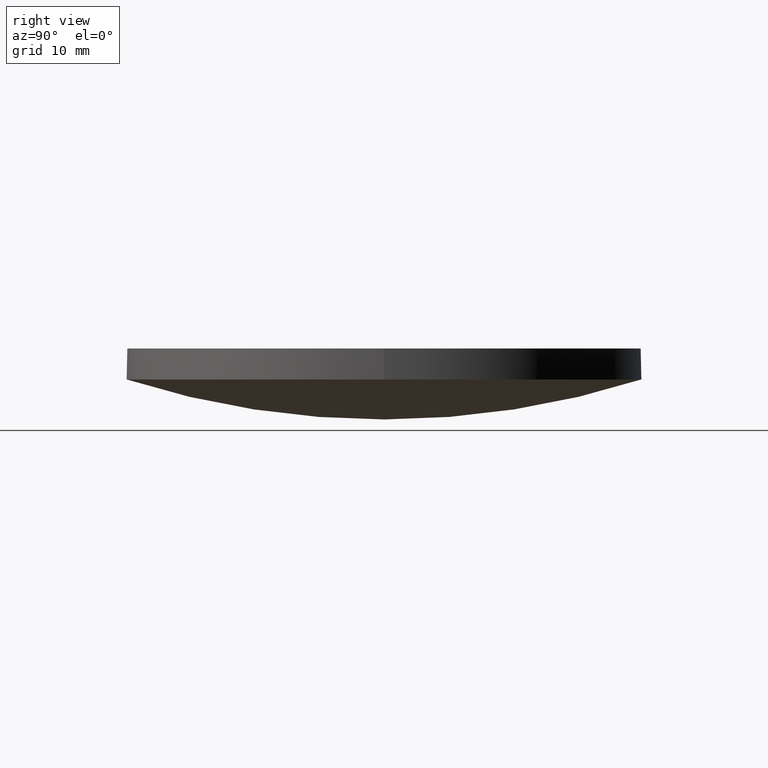
[diagram: clean part render]
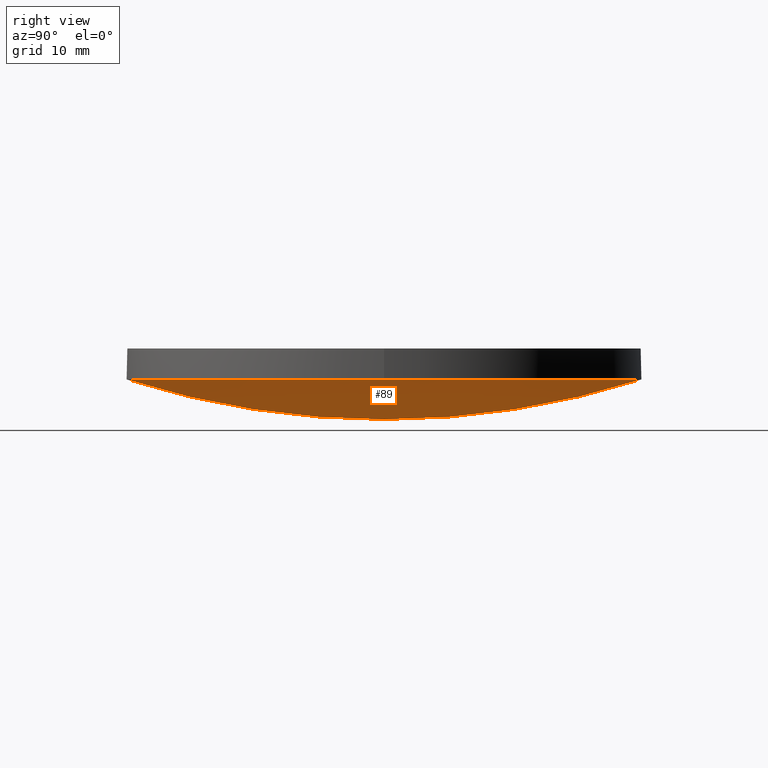
[diagram: same view with one face highlighted and labeled with its STEP entity id]
A machine part, right view. The second image highlights one B-rep face of the part: STEP entity #89.
In plain terms, the highlighted face is a freeform B-spline surface patch.
Its self-contained STEP definition (entity closure, byte-faithful):
#15 = CARTESIAN_POINT ( 'NONE',  ( 17.56126240751326900, -8.850211354717091100, -0.02758173750897841700 ) ) ;
#17 = DIRECTION ( 'NONE',  ( -0.0000000000000000000, -0.0000000000000000000, -1.000000000000000000 ) ) ;
#18 = EDGE_LOOP ( 'NONE', ( #212, #42, #205 ) ) ;
#26 =( BOUNDED_SURFACE ( )  B_SPLINE_SURFACE ( 3, 3, ( 
 ( #136, #178, #230, #158 ),
 ( #193, #210, #15, #183 ),
 ( #65, #195, #138, #118 ),
 ( #180, #234, #216, #161 ) ),
 .UNSPECIFIED., .F., .F., .T. ) 
 B_SPLINE_SURFACE_WITH_KNOTS ( ( 4, 4 ),
 ( 4, 4 ),
 ( 0.0000000000000000000, 1.000000000000000000 ),
 ( 0.0000000000000000000, 1.000000000000000000 ),
 .UNSPECIFIED. ) 
 GEOMETRIC_REPRESENTATION_ITEM ( )  RATIONAL_B_SPLINE_SURFACE ( (
 ( 1.000000000000000000, 0.9919887251175699700, 0.9919887251175699700, 1.000000000000000000),
 ( 0.9677694585664475800, 0.9600163914110513300, 0.9600163914110513300, 0.9677694585664475800),
 ( 0.9677694585664475800, 0.9600163914110513300, 0.9600163914110513300, 0.9677694585664475800),
 ( 1.000000000000000000, 0.9919887251175699700, 0.9919887251175699700, 1.000000000000000000) ) ) 
 REPRESENTATION_ITEM ( '' )  SURFACE ( )  );
#40 = DIRECTION ( 'NONE',  ( -0.0000000000000000000, -0.0000000000000000000, -1.000000000000000000 ) ) ;
#41 = EDGE_CURVE ( 'NONE', #93, #128, #219, .T. ) ;
#42 = ORIENTED_EDGE ( 'NONE', *, *, #227, .T. ) ;
#52 = DIRECTION ( 'NONE',  ( 1.000000000000000000, 0.0000000000000000000, 0.0000000000000000000 ) ) ;
#64 = DIRECTION ( 'NONE',  ( 1.000000000000000000, -1.776356839400250500E-015, 0.0000000000000000000 ) ) ;
#65 = CARTESIAN_POINT ( 'NONE',  ( 2.245628495783497100E-014, 8.850211354717103500, -1.392937526107893800 ) ) ;
#67 = CARTESIAN_POINT ( 'NONE',  ( 3.275035724031239300E-014, -25.39999999999999100, 3.949545170682996700 ) ) ;
#78 = AXIS2_PLACEMENT_3D ( 'NONE', #108, #209, #171 ) ;
#84 = FACE_OUTER_BOUND ( 'NONE', #18, .T. ) ;
#89 = ADVANCED_FACE ( 'NONE', ( #84 ), #26, .T. ) ;
#93 = VERTEX_POINT ( 'NONE', #214 ) ;
#108 = CARTESIAN_POINT ( 'NONE',  ( 0.0000000000000000000, 0.0000000000000000000, 83.65000000000000600 ) ) ;
#115 = VERTEX_POINT ( 'NONE', #67 ) ;
#118 = CARTESIAN_POINT ( 'NONE',  ( 25.97290625815989200, 8.850211354717112400, 2.670315118084529700 ) ) ;
#128 = VERTEX_POINT ( 'NONE', #194 ) ;
#136 = CARTESIAN_POINT ( 'NONE',  ( 3.282440350888094400E-014, -25.69489275285958700, 4.044127186374965700 ) ) ;
#138 = CARTESIAN_POINT ( 'NONE',  ( 17.56126240751326200, 8.850211354717108800, -0.02758173750896670100 ) ) ;
#156 = CARTESIAN_POINT ( 'NONE',  ( 9.992007221626412800E-016, 4.884981308350691100E-015, 3.949545170682999400 ) ) ;
#158 = CARTESIAN_POINT ( 'NONE',  ( 24.31237598715987100, -25.69489275285957700, 7.847603202286421700 ) ) ;
#161 = CARTESIAN_POINT ( 'NONE',  ( 24.31237598715984700, 25.69489275285960500, 7.847603202286434200 ) ) ;
#163 = CARTESIAN_POINT ( 'NONE',  ( 9.992007221626412800E-016, 4.884981308350691100E-015, 3.949545170682999400 ) ) ;
#171 = DIRECTION ( 'NONE',  ( 3.473828569973949900E-016, -1.000000000000000000, 0.0000000000000000000 ) ) ;
#178 = CARTESIAN_POINT ( 'NONE',  ( 8.268941173388400400, -25.69489275285958000, 4.044127186374967500 ) ) ;
#180 = CARTESIAN_POINT ( 'NONE',  ( 1.497247299942089200E-014, 25.69489275285959500, 4.044127186374979000 ) ) ;
#183 = CARTESIAN_POINT ( 'NONE',  ( 25.97290625815989900, -8.850211354717089300, 2.670315118084519000 ) ) ;
#190 = CIRCLE ( 'NONE', #78, 83.65000000000000600 ) ;
#193 = CARTESIAN_POINT ( 'NONE',  ( 2.860510836869978600E-014, -8.850211354717096400, -1.392937526107905800 ) ) ;
#194 = CARTESIAN_POINT ( 'NONE',  ( 25.39999999999999900, 4.884981308350691100E-015, 3.949545170682999400 ) ) ;
#195 = CARTESIAN_POINT ( 'NONE',  ( 8.833708151933864300, 8.850211354717107100, -1.392937526107891100 ) ) ;
#203 = CIRCLE ( 'NONE', #226, 25.39999999999999900 ) ;
#205 = ORIENTED_EDGE ( 'NONE', *, *, #41, .T. ) ;
#209 = DIRECTION ( 'NONE',  ( 1.000000000000000000, 3.473828569973949900E-016, 3.002094871832189900E-016 ) ) ;
#210 = CARTESIAN_POINT ( 'NONE',  ( 8.833708151933873200, -8.850211354717092900, -1.392937526107903300 ) ) ;
#211 = AXIS2_PLACEMENT_3D ( 'NONE', #156, #40, #64 ) ;
#212 = ORIENTED_EDGE ( 'NONE', *, *, #217, .T. ) ;
#214 = CARTESIAN_POINT ( 'NONE',  ( 1.510330810484473600E-014, 25.39999999999999900, 3.949545170682996700 ) ) ;
#216 = CARTESIAN_POINT ( 'NONE',  ( 16.43851520568676200, 25.69489275285959800, 5.322191449138542500 ) ) ;
#217 = EDGE_CURVE ( 'NONE', #128, #115, #203, .T. ) ;
#219 = CIRCLE ( 'NONE', #211, 25.39999999999999900 ) ;
#226 = AXIS2_PLACEMENT_3D ( 'NONE', #163, #17, #52 ) ;
#227 = EDGE_CURVE ( 'NONE', #115, #93, #190, .T. ) ;
#230 = CARTESIAN_POINT ( 'NONE',  ( 16.43851520568679100, -25.69489275285957700, 5.322191449138529200 ) ) ;
#234 = CARTESIAN_POINT ( 'NONE',  ( 8.268941173388384400, 25.69489275285959500, 4.044127186374982600 ) ) ;